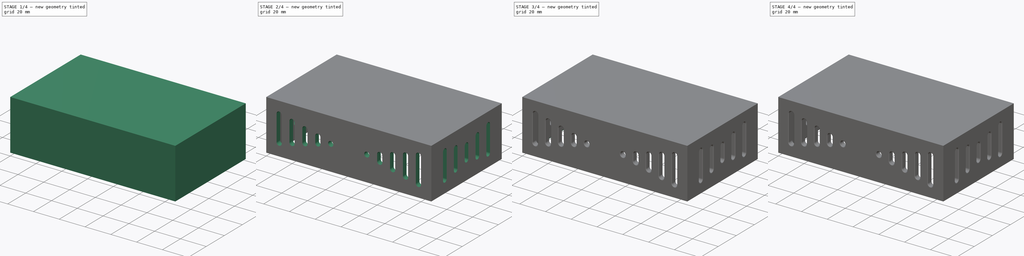
[diagram: build sequence overview — one tinted view per stage of 4, left to right]
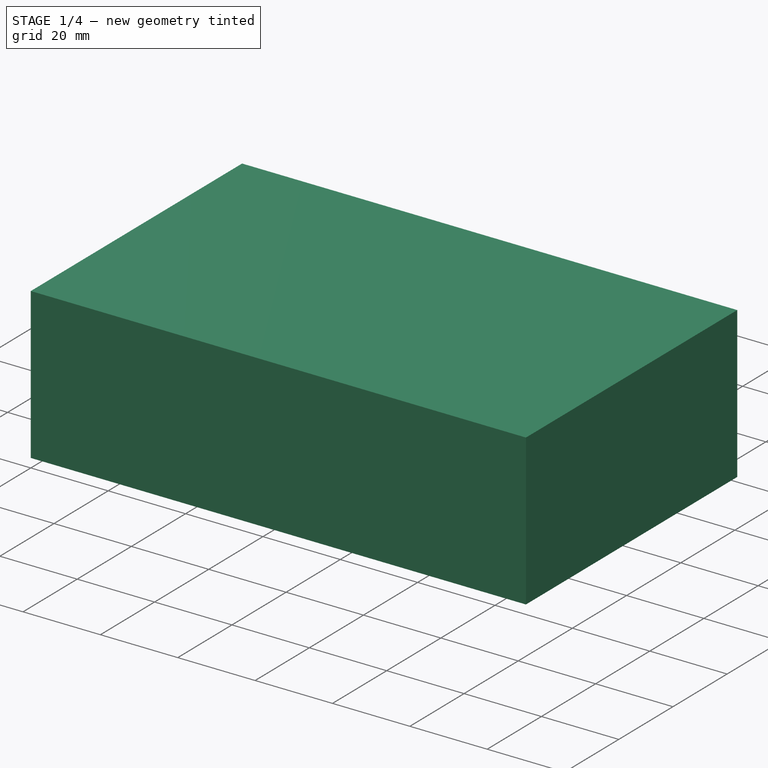
[diagram: stage 1 of 4 — iso view after this stage's code; geometry added in this stage tinted green]
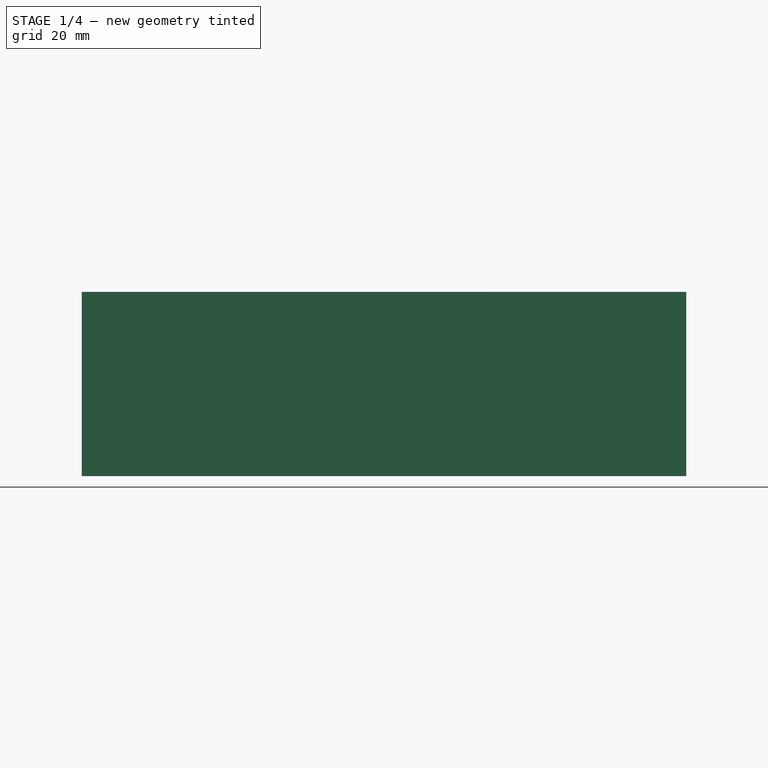
[diagram: stage 1 of 4 — front view after this stage's code; geometry added in this stage tinted green]
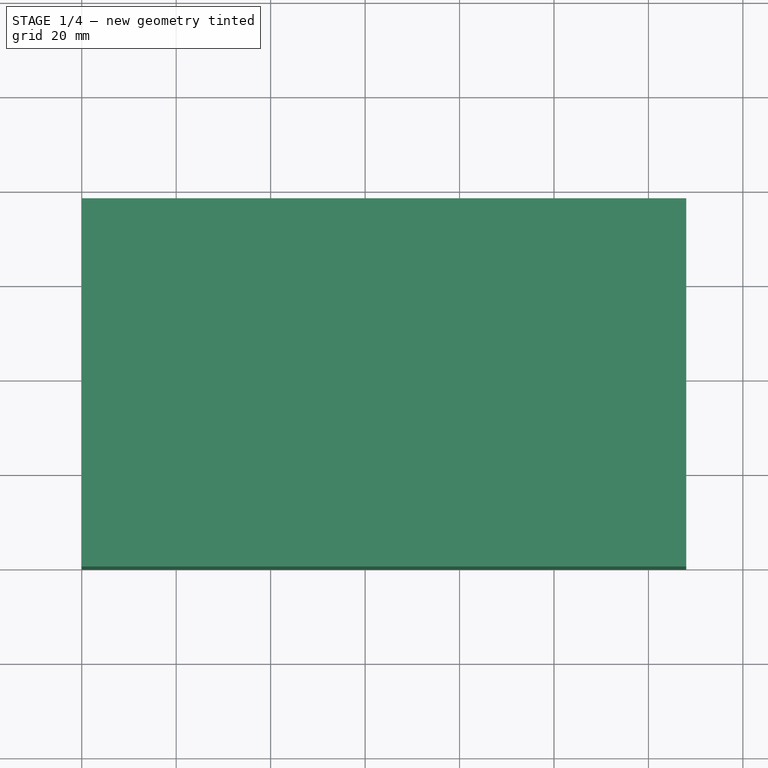
[diagram: stage 1 of 4 — top view after this stage's code; geometry added in this stage tinted green]
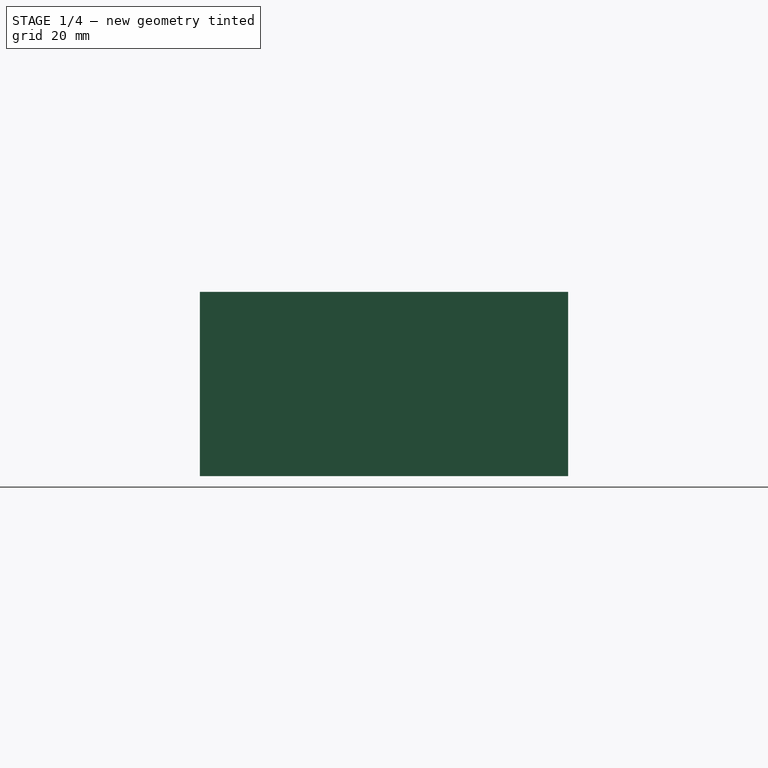
[diagram: stage 1 of 4 — right view after this stage's code; geometry added in this stage tinted green]
FCSTD DOCUMENT  (FreeCAD 0.19R24276 (Git))
Label: Airlogger Case Body
License: All rights reserved
LicenseURL: http://en.wikipedia.org/wiki/All_rights_reserved
objects: Sketcher::SketchObject×7, PartDesign::Pocket×6, PartDesign::Fillet×2, PartDesign::Pad×1, Spreadsheet::Sheet×1, PartDesign::Body×1
note: 26 computed .brp shape members not serialized (recipe doc carries the construction recipe); baked Part::Feature solids carry a one-line shape summary decoded from their .brp

FEATURE [Sketcher::SketchObject] Sketch
  FullyConstrained = true
  MapMode = 5
  Support = -> [XY_Plane]
  sketch-geometry (4):
    g0: LineSegment StartX=0 StartY=78 StartZ=0 EndX=128 EndY=78 EndZ=0
    g1: LineSegment StartX=128 StartY=78 StartZ=0 EndX=128 EndY=0 EndZ=0
    g2: LineSegment StartX=128 StartY=0 StartZ=0 EndX=0 EndY=0 EndZ=0
    g3: LineSegment StartX=0 StartY=0 StartZ=0 EndX=0 EndY=78 EndZ=0
  constraints (11):
    c: Coincident(g0,g1)
    c: Coincident(g1,g2)
    c: Coincident(g2,g3)
    c: Coincident(g3,g0)
    c: Horizontal(g0)
    c: Horizontal(g2)
    c: Vertical(g1)
    c: Vertical(g3)
    c: DistanceX(g0,g0) = 128
    c: DistanceY(g1,g1) = 78
    c: Coincident(g-1,g2)
FEATURE [PartDesign::Pad] Pad
  Direction = (1,1,1)
  Length = 39
  Length2 = 100
  Profile = -> Sketch
  Refine = true
  Type = 0
FEATURE [Sketcher::SketchObject] Sketch001
  FullyConstrained = true
  MapMode = 5
  Placement = pos=(0,0,0) rot=(1,0,0;3.14159rad)
  Support = -> [Pad]
  sketch-geometry (4):
    g0: LineSegment StartX=4 StartY=-4 StartZ=0 EndX=124 EndY=-4 EndZ=0
    g1: LineSegment StartX=124 StartY=-4 StartZ=0 EndX=124 EndY=-74 EndZ=0
    g2: LineSegment StartX=124 StartY=-74 StartZ=0 EndX=4 EndY=-74 EndZ=0
    g3: LineSegment StartX=4 StartY=-74 StartZ=0 EndX=4 EndY=-4 EndZ=0
  constraints (12):
    c: Coincident(g0,g1)
    c: Coincident(g1,g2)
    c: Coincident(g2,g3)
    c: Coincident(g3,g0)
    c: Horizontal(g0)
    c: Horizontal(g2)
    c: Vertical(g1)
    c: Vertical(g3)
    c: DistanceX(g-1,g0) = 4
    c: DistanceY(g0,g-1) = 4
    c: DistanceX(g0,g0) = 120
    c: DistanceY(g1,g1) = 70
FEATURE [PartDesign::Pocket] Pocket
  BaseFeature = -> Pad
  Length = 35
  Length2 = 100
  Profile = -> Sketch001
  Refine = true
  Type = 0
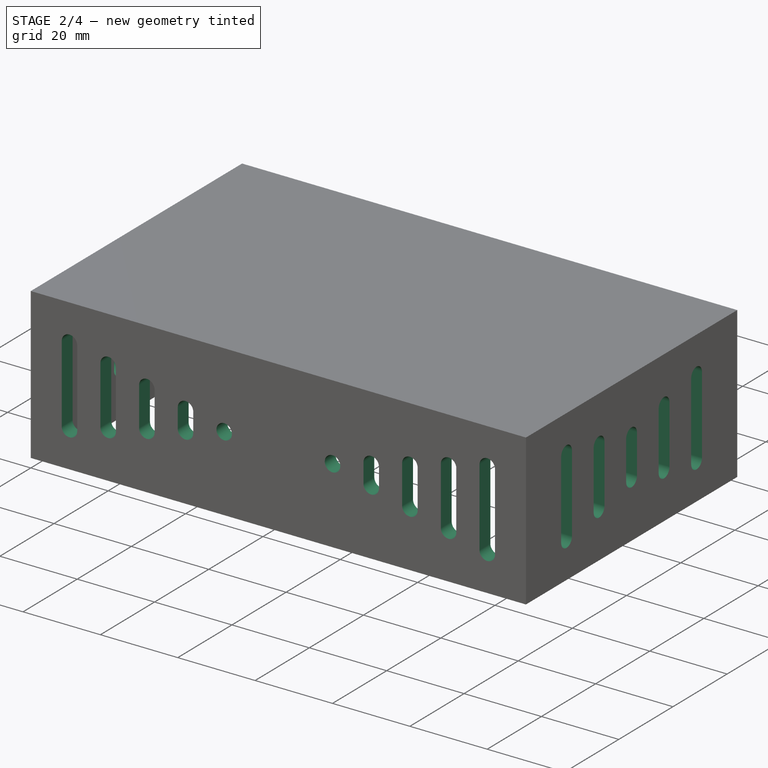
[diagram: stage 2 of 4 — iso view after this stage's code; geometry added in this stage tinted green]
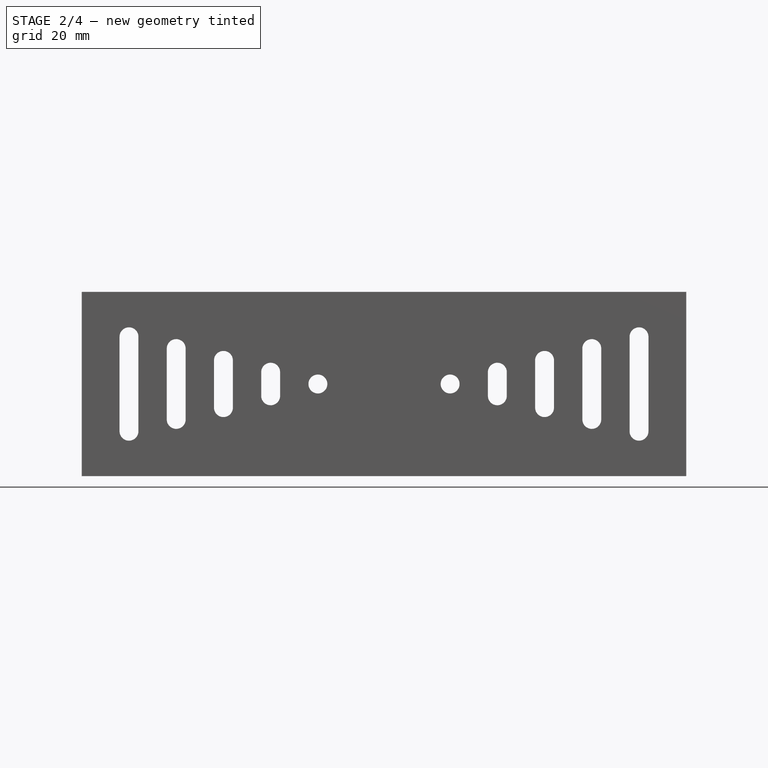
[diagram: stage 2 of 4 — front view after this stage's code; geometry added in this stage tinted green]
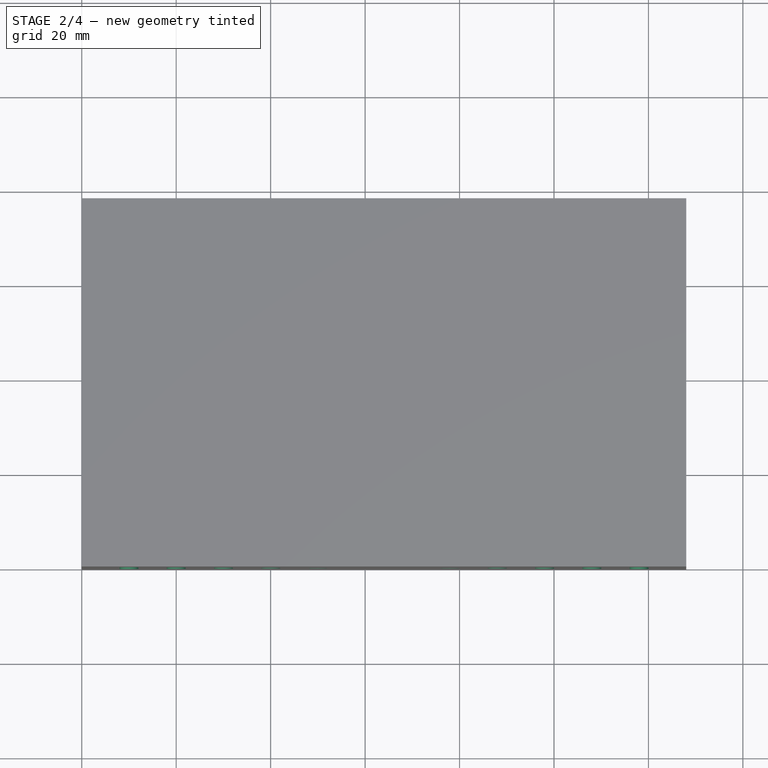
[diagram: stage 2 of 4 — top view after this stage's code; geometry added in this stage tinted green]
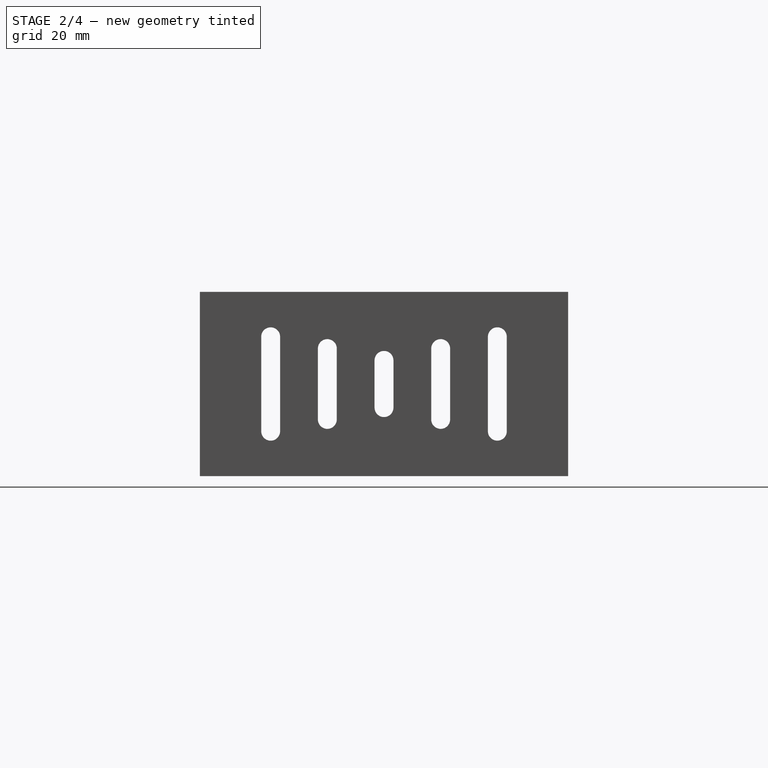
[diagram: stage 2 of 4 — right view after this stage's code; geometry added in this stage tinted green]
FEATURE [Sketcher::SketchObject] Sketch002
  ExternalGeometry = -> [Pocket]
  FullyConstrained = true
  MapMode = 5
  Placement = pos=(0,78,0) rot=(0,0.707107,0.707107;3.14159rad)
  Support = -> [Pocket]
  expr: Constraints[30] = Spreadsheet.hole_distance
  expr: Constraints[31] = Spreadsheet.hole_distance
  expr: Constraints[72] = Spreadsheet.hole_distance
  expr: Constraints[6] = Spreadsheet.hole_width
  expr: Constraints[64] = Spreadsheet.hole_distance + Spreadsheet.hole_width / 2
  expr: Constraints[70] = Spreadsheet.hole_distance + Spreadsheet.hole_width / 2
  expr: Constraints[73] = Spreadsheet.hole_distance
  expr: Constraints[71] = Spreadsheet.hole_distance
  expr: Constraints[29] = Spreadsheet.hole_width
  expr: Constraints[32] = Spreadsheet.hole_distance
  expr: Constraints[74] = Spreadsheet.hole_width
  sketch-geometry (35):
    g0: ArcOfCircle CenterX=-118 CenterY=29.5 CenterZ=0 NormalX=0 NormalY=0 NormalZ=1 AngleXU=0 Radius=2 StartAngle=5e-16 EndAngle=3.14159
    g1: ArcOfCircle CenterX=-118 CenterY=9.5 CenterZ=0 NormalX=0 NormalY=0 NormalZ=1 AngleXU=0 Radius=2 StartAngle=3.14159 EndAngle=6.28319
    g2: LineSegment StartX=-120 StartY=29.5 StartZ=0 EndX=-120 EndY=9.5 EndZ=0
    g3: LineSegment StartX=-116 StartY=29.5 StartZ=0 EndX=-116 EndY=9.5 EndZ=0
    g4: ArcOfCircle CenterX=-108 CenterY=27 CenterZ=0 NormalX=0 NormalY=0 NormalZ=1 AngleXU=0 Radius=2 StartAngle=5e-16 EndAngle=3.14159
    g5: ArcOfCircle CenterX=-108 CenterY=12 CenterZ=0 NormalX=0 NormalY=0 NormalZ=1 AngleXU=0 Radius=2 StartAngle=3.14159 EndAngle=6.28319
    g6: LineSegment StartX=-110 StartY=27 StartZ=0 EndX=-110 EndY=12 EndZ=0
    g7: LineSegment StartX=-106 StartY=27 StartZ=0 EndX=-106 EndY=12 EndZ=0
    g8: ArcOfCircle CenterX=-98 CenterY=24.5 CenterZ=0 NormalX=0 NormalY=0 NormalZ=1 AngleXU=0 Radius=2 StartAngle=7e-16 EndAngle=3.14159
    g9: ArcOfCircle CenterX=-98 CenterY=14.5 CenterZ=0 NormalX=0 NormalY=0 NormalZ=1 AngleXU=0 Radius=2 StartAngle=3.14159 EndAngle=6.28319
    g10: LineSegment StartX=-100 StartY=24.5 StartZ=0 EndX=-100 EndY=14.5 EndZ=0
    g11: LineSegment StartX=-96 StartY=24.5 StartZ=0 EndX=-96 EndY=14.5 EndZ=0
    g12: ArcOfCircle CenterX=-88 CenterY=22 CenterZ=0 NormalX=0 NormalY=0 NormalZ=1 AngleXU=0 Radius=2 StartAngle=0 EndAngle=3.14159
    g13: ArcOfCircle CenterX=-88 CenterY=17 CenterZ=0 NormalX=0 NormalY=0 NormalZ=1 AngleXU=0 Radius=2 StartAngle=3.14159 EndAngle=6.28319
    g14: LineSegment StartX=-90 StartY=22 StartZ=0 EndX=-90 EndY=17 EndZ=0
    g15: LineSegment StartX=-86 StartY=22 StartZ=0 EndX=-86 EndY=17 EndZ=0
    g16: Circle CenterX=-78 CenterY=19.5 CenterZ=0 NormalX=0 NormalY=0 NormalZ=1 AngleXU=0 Radius=2
    g17: LineSegment StartX=0 StartY=19.5 StartZ=0 EndX=-128 EndY=19.5 EndZ=0
    g18: ArcOfCircle CenterX=-10 CenterY=9.5 CenterZ=0 NormalX=0 NormalY=0 NormalZ=1 AngleXU=0 Radius=2 StartAngle=3.14159 EndAngle=6.28319
    g19: ArcOfCircle CenterX=-10 CenterY=29.5 CenterZ=0 NormalX=0 NormalY=0 NormalZ=1 AngleXU=0 Radius=2 StartAngle=5e-16 EndAngle=3.14159
    g20: LineSegment StartX=-8 StartY=9.5 StartZ=0 EndX=-8 EndY=29.5 EndZ=0
    g21: LineSegment StartX=-12 StartY=9.5 StartZ=0 EndX=-12 EndY=29.5 EndZ=0
    g22: ArcOfCircle CenterX=-20 CenterY=12 CenterZ=0 NormalX=0 NormalY=0 NormalZ=1 AngleXU=0 Radius=2 StartAngle=3.14159 EndAngle=6.28319
    g23: ArcOfCircle CenterX=-20 CenterY=27 CenterZ=0 NormalX=0 NormalY=0 NormalZ=1 AngleXU=0 Radius=2 StartAngle=0 EndAngle=3.14159
    g24: LineSegment StartX=-18 StartY=12 StartZ=0 EndX=-18 EndY=27 EndZ=0
    g25: LineSegment StartX=-22 StartY=12 StartZ=0 EndX=-22 EndY=27 EndZ=0
    g26: ArcOfCircle CenterX=-30 CenterY=14.5 CenterZ=0 NormalX=0 NormalY=0 NormalZ=1 AngleXU=0 Radius=2 StartAngle=3.14159 EndAngle=6.28319
    g27: ArcOfCircle CenterX=-30 CenterY=24.5 CenterZ=0 NormalX=0 NormalY=0 NormalZ=1 AngleXU=0 Radius=2 StartAngle=-9e-16 EndAngle=3.14159
    g28: LineSegment StartX=-28 StartY=14.5 StartZ=0 EndX=-28 EndY=24.5 EndZ=0
    g29: LineSegment StartX=-32 StartY=14.5 StartZ=0 EndX=-32 EndY=24.5 EndZ=0
    g30: ArcOfCircle CenterX=-40 CenterY=17 CenterZ=0 NormalX=0 NormalY=0 NormalZ=1 AngleXU=0 Radius=2 StartAngle=3.14159 EndAngle=6.28319
    g31: ArcOfCircle CenterX=-40 CenterY=22 CenterZ=0 NormalX=0 NormalY=0 NormalZ=1 AngleXU=0 Radius=2 StartAngle=-9e-16 EndAngle=3.14159
    g32: LineSegment StartX=-38 StartY=17 StartZ=0 EndX=-38 EndY=22 EndZ=0
    g33: LineSegment StartX=-42 StartY=17 StartZ=0 EndX=-42 EndY=22 EndZ=0
    g34: Circle CenterX=-50 CenterY=19.5 CenterZ=0 NormalX=0 NormalY=0 NormalZ=1 AngleXU=0 Radius=2
  constraints (81):
    c: Tangent(g0,g3) = 1.5708
    c: Tangent(g0,g2) = -1.5708
    c: Tangent(g2,g1) = -1.5708
    c: Tangent(g3,g1) = 1.5708
    c: Vertical(g2)
    c: Equal(g0,g1)
    c: DistanceX(g0,g0) = 4
    c: Tangent(g4,g7) = 1.5708
    c: Tangent(g4,g6) = -1.5708
    c: Tangent(g6,g5) = -1.5708
    c: Tangent(g7,g5) = 1.5708
    c: Equal(g4,g5)
    c: Equal(g0,g4) = 4
    c: Tangent(g8,g11) = 1.5708
    c: Tangent(g8,g10) = -1.5708
    c: Tangent(g10,g9) = -1.5708
    c: Tangent(g11,g9) = 1.5708
    c: Equal(g8,g9)
    c: Equal(g0,g8) = 4
    c: Tangent(g12,g15) = 1.5708
    c: Tangent(g12,g14) = -1.5708
    c: Tangent(g14,g13) = -1.5708
    c: Tangent(g15,g13) = 1.5708
    c: Equal(g12,g13)
    c: Equal(g0,g12) = 4
    c: DistanceY(g2,g2) = 20
    c: DistanceY(g6,g6) = 15
    c: DistanceY(g10,g10) = 10
    c: DistanceY(g14,g14) = 5
    c: Diameter(g16) = 4
    c: DistanceX(g0,g4) = 6
    c: DistanceX(g4,g8) = 6
    c: DistanceX(g8,g12) = 6
    c: Symmetric(g-1,g-3,g17)
    c: DistanceX(g17,g17) = 128
    c: Symmetric(g0,g1,g17)
    c: Symmetric(g4,g5,g17)
    c: Symmetric(g8,g9,g17)
    c: Symmetric(g12,g13,g17)
    c: PointOnObject(g16,g17)
    c: Tangent(g18,g21) = 1.5708
    c: Tangent(g18,g20) = -1.5708
    c: Tangent(g20,g19) = -1.5708
    c: Tangent(g21,g19) = 1.5708
    c: Equal(g18,g19)
    c: Tangent(g22,g25) = 1.5708
    c: Tangent(g22,g24) = -1.5708
    c: Tangent(g24,g23) = -1.5708
    c: Tangent(g25,g23) = 1.5708
    c: Equal(g22,g23)
    c: Equal(g18,g22) = 4
    c: Tangent(g26,g29) = 1.5708
    c: Tangent(g26,g28) = -1.5708
    c: Tangent(g28,g27) = -1.5708
    c: Tangent(g29,g27) = 1.5708
    c: Equal(g26,g27)
    c: Equal(g18,g26) = 4
    c: Tangent(g30,g33) = 1.5708
    c: Tangent(g30,g32) = -1.5708
    c: Tangent(g32,g31) = -1.5708
    c: Tangent(g33,g31) = 1.5708
    c: Equal(g30,g31)
    c: Equal(g18,g30) = 4
    c: Diameter(g34) = 4
    c: DistanceX(g12,g16) = 8
    c: DistanceY(g20,g20) = 20
    c: DistanceY(g22,g23) = 15
    c: DistanceY(g28,g28) = 10
    c: DistanceY(g32,g32) = 5
    c: PointOnObject(g34,g17)
    c: DistanceX(g34,g31) = 8
    c: DistanceX(g31,g27) = 6
    c: DistanceX(g27,g23) = 6
    c: DistanceX(g23,g19) = 6
    c: DistanceX(g19,g19) = 4
    c: Symmetric(g19,g18,g17)
    c: Symmetric(g23,g22,g17)
    c: Symmetric(g27,g26,g17)
    c: Symmetric(g31,g30,g17)
    c: DistanceX(g17,g0) = 8
    c: DistanceX(g19,g-1) = 8
FEATURE [Spreadsheet::Sheet] Spreadsheet
  cells = A1(hole_width)=4; A2(hole_distance)=6; A3(hole_distance_front)=8
FEATURE [PartDesign::Pocket] Pocket001
  BaseFeature = -> Pocket
  Length = 5
  Length2 = 100
  Profile = -> Sketch002
  Refine = true
  Type = 1
FEATURE [Sketcher::SketchObject] Sketch003
  ExternalGeometry = -> [Pocket001]
  FullyConstrained = true
  MapMode = 5
  Placement = pos=(128,0,0) rot=(0.57735,0.57735,0.57735;2.0944rad)
  Support = -> [Pocket001]
  expr: Constraints[6] = Spreadsheet.hole_width
  expr: Constraints[28] = Spreadsheet.hole_width
  expr: Constraints[40] = Spreadsheet.hole_distance_front
  expr: Constraints[27] = Spreadsheet.hole_width
  expr: Constraints[41] = Spreadsheet.hole_distance_front
  expr: Constraints[45] = Spreadsheet.hole_distance_front
  expr: Constraints[46] = Spreadsheet.hole_distance_front
  sketch-geometry (21):
    g0: ArcOfCircle CenterX=15 CenterY=29.5 CenterZ=0 NormalX=0 NormalY=0 NormalZ=1 AngleXU=0 Radius=2 StartAngle=0 EndAngle=3.14159
    g1: ArcOfCircle CenterX=15 CenterY=9.5 CenterZ=0 NormalX=0 NormalY=0 NormalZ=1 AngleXU=0 Radius=2 StartAngle=3.14159 EndAngle=6.28319
    g2: LineSegment StartX=13 StartY=29.5 StartZ=0 EndX=13 EndY=9.5 EndZ=0
    g3: LineSegment StartX=17 StartY=29.5 StartZ=0 EndX=17 EndY=9.5 EndZ=0
    g4: ArcOfCircle CenterX=27 CenterY=27 CenterZ=0 NormalX=0 NormalY=0 NormalZ=1 AngleXU=0 Radius=2 StartAngle=9e-16 EndAngle=3.14159
    g5: ArcOfCircle CenterX=27 CenterY=12 CenterZ=0 NormalX=0 NormalY=0 NormalZ=1 AngleXU=0 Radius=2 StartAngle=3.14159 EndAngle=6.28319
    g6: LineSegment StartX=25 StartY=27 StartZ=0 EndX=25 EndY=12 EndZ=0
    g7: LineSegment StartX=29 StartY=27 StartZ=0 EndX=29 EndY=12 EndZ=0
    g8: ArcOfCircle CenterX=63 CenterY=29.5 CenterZ=0 NormalX=0 NormalY=0 NormalZ=1 AngleXU=0 Radius=2 StartAngle=-9e-16 EndAngle=3.14159
    g9: ArcOfCircle CenterX=63 CenterY=9.5 CenterZ=0 NormalX=0 NormalY=0 NormalZ=1 AngleXU=0 Radius=2 StartAngle=3.14159 EndAngle=6.28319
    g10: LineSegment StartX=61 StartY=29.5 StartZ=0 EndX=61 EndY=9.5 EndZ=0
    g11: LineSegment StartX=65 StartY=29.5 StartZ=0 EndX=65 EndY=9.5 EndZ=0
    g12: ArcOfCircle CenterX=51 CenterY=27 CenterZ=0 NormalX=0 NormalY=0 NormalZ=1 AngleXU=0 Radius=2 StartAngle=2e-16 EndAngle=3.14159
    g13: ArcOfCircle CenterX=51 CenterY=12 CenterZ=0 NormalX=0 NormalY=0 NormalZ=1 AngleXU=0 Radius=2 StartAngle=3.14159 EndAngle=6.28319
    g14: LineSegment StartX=49 StartY=27 StartZ=0 EndX=49 EndY=12 EndZ=0
    g15: LineSegment StartX=53 StartY=27 StartZ=0 EndX=53 EndY=12 EndZ=0
    g16: ArcOfCircle CenterX=39 CenterY=24.5 CenterZ=0 NormalX=0 NormalY=0 NormalZ=1 AngleXU=0 Radius=2 StartAngle=-9e-16 EndAngle=3.14159
    g17: ArcOfCircle CenterX=39 CenterY=14.5 CenterZ=0 NormalX=0 NormalY=0 NormalZ=1 AngleXU=0 Radius=2 StartAngle=3.14159 EndAngle=6.28319
    g18: LineSegment StartX=37 StartY=24.5 StartZ=0 EndX=37 EndY=14.5 EndZ=0
    g19: LineSegment StartX=41 StartY=24.5 StartZ=0 EndX=41 EndY=14.5 EndZ=0
    g20: LineSegment StartX=0 StartY=19.5 StartZ=0 EndX=78 EndY=19.5 EndZ=0
  constraints (48):
    c: Tangent(g0,g3) = 1.5708
    c: Tangent(g0,g2) = -1.5708
    c: Tangent(g2,g1) = -1.5708
    c: Tangent(g3,g1) = 1.5708
    c: Vertical(g2)
    c: Equal(g0,g1)
    c: DistanceX(g0,g0) = 4
    c: Tangent(g4,g7) = 1.5708
    c: Tangent(g4,g6) = -1.5708
    c: Tangent(g6,g5) = -1.5708
    c: Tangent(g7,g5) = 1.5708
    c: Equal(g4,g5)
    c: Equal(g0,g4) = 4
    c: Tangent(g8,g11) = 1.5708
    c: Tangent(g8,g10) = -1.5708
    c: Tangent(g10,g9) = -1.5708
    c: Tangent(g11,g9) = 1.5708
    c: Equal(g8,g9)
    c: Tangent(g12,g15) = 1.5708
    c: Tangent(g12,g14) = -1.5708
    c: Tangent(g14,g13) = -1.5708
    c: Tangent(g15,g13) = 1.5708
    c: Equal(g12,g13)
    c: DistanceY(g2,g2) = 20
    c: DistanceY(g11,g11) = 20
    c: DistanceY(g15,g15) = 15
    c: DistanceY(g7,g7) = 15
    c: DistanceX(g8,g8) = 4
    c: DistanceX(g12,g12) = 4
    c: Tangent(g16,g19) = 1.5708
    c: Tangent(g16,g18) = -1.5708
    c: Tangent(g18,g17) = -1.5708
    c: Tangent(g19,g17) = 1.5708
    c: Equal(g16,g17)
    c: Equal(g12,g16) = 4
    c: DistanceY(g19,g19) = 10
    c: Symmetric(g-3,g-1,g20)
    c: Vertical(g20,g-3)
    c: Symmetric(g0,g1,g20)
    c: Symmetric(g4,g5,g20)
    c: DistanceX(g0,g4) = 8
    c: DistanceX(g4,g16) = 8
    c: Symmetric(g16,g17,g20)
    c: Symmetric(g12,g13,g20)
    c: Symmetric(g8,g9,g20)
    c: DistanceX(g12,g8) = 8
    c: DistanceX(g16,g12) = 8
    c: DistanceX(g8,g-3) = 13
FEATURE [PartDesign::Pocket] Pocket002
  BaseFeature = -> Pocket001
  Length = 5
  Length2 = 100
  Profile = -> Sketch003
  Refine = true
  Type = 1
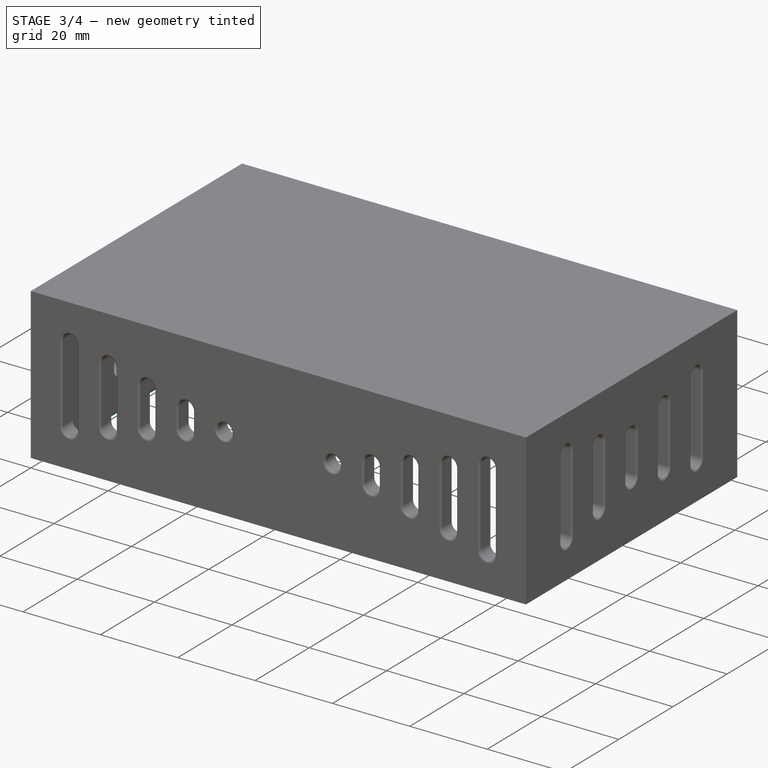
[diagram: stage 3 of 4 — iso view after this stage's code; geometry added in this stage tinted green]
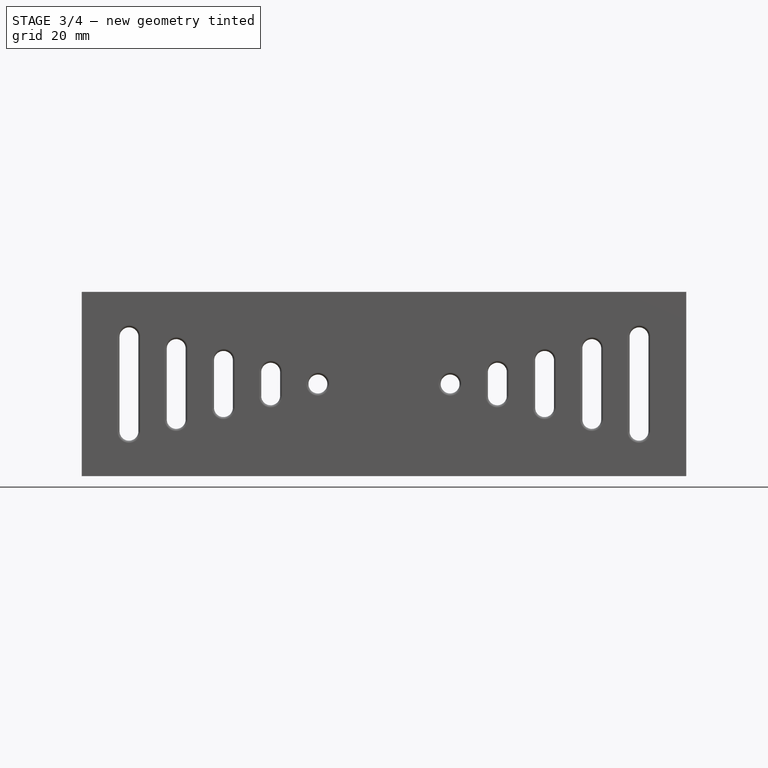
[diagram: stage 3 of 4 — front view after this stage's code; geometry added in this stage tinted green]
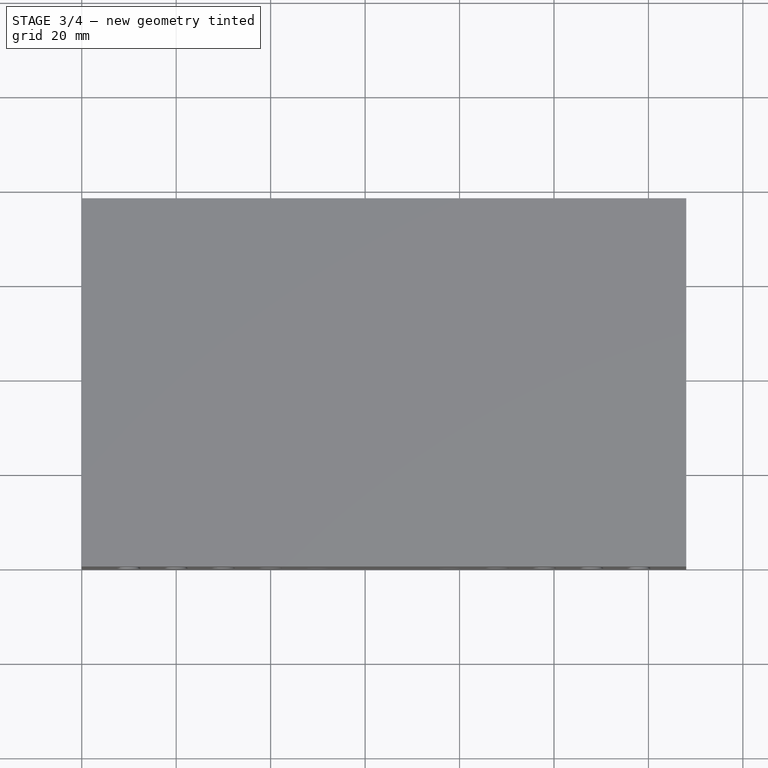
[diagram: stage 3 of 4 — top view after this stage's code; geometry added in this stage tinted green]
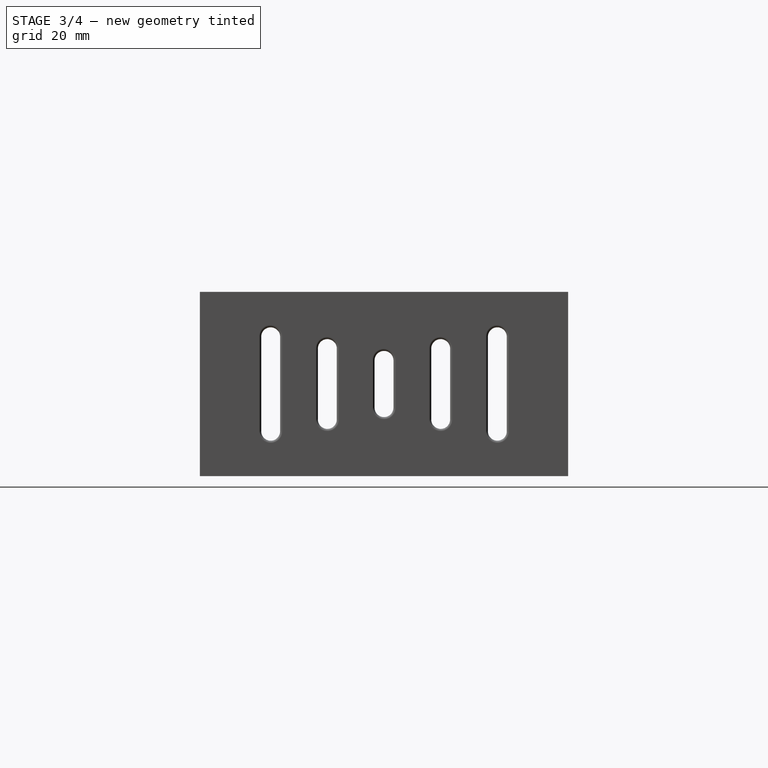
[diagram: stage 3 of 4 — right view after this stage's code; geometry added in this stage tinted green]
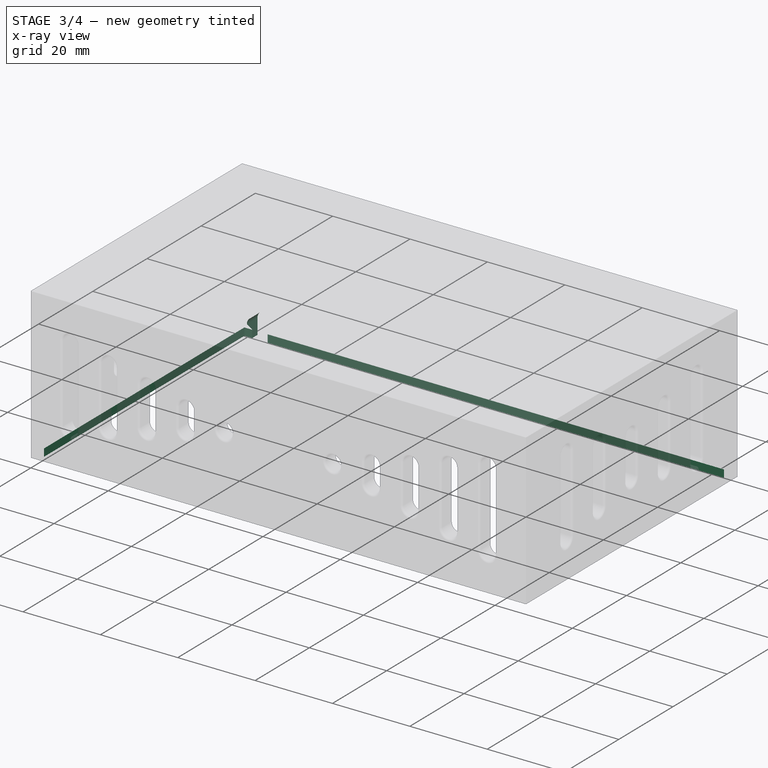
[diagram: stage 3 of 4 — x-ray composite at the iso view; earlier geometry ghosted, this stage's added geometry solid]
FEATURE [Sketcher::SketchObject] Sketch004
  FullyConstrained = true
  MapMode = 5
  Placement = pos=(0,0,0) rot=(1,0,0;3.14159rad)
  Support = -> [Pocket002]
  sketch-geometry (4):
    g0: LineSegment StartX=2 StartY=-2 StartZ=0 EndX=126 EndY=-2 EndZ=0
    g1: LineSegment StartX=126 StartY=-2 StartZ=0 EndX=126 EndY=-76 EndZ=0
    g2: LineSegment StartX=126 StartY=-76 StartZ=0 EndX=2 EndY=-76 EndZ=0
    g3: LineSegment StartX=2 StartY=-76 StartZ=0 EndX=2 EndY=-2 EndZ=0
  constraints (12):
    c: Coincident(g0,g1)
    c: Coincident(g1,g2)
    c: Coincident(g2,g3)
    c: Coincident(g3,g0)
    c: Horizontal(g0)
    c: Horizontal(g2)
    c: Vertical(g1)
    c: Vertical(g3)
    c: DistanceX(g0,g0) = 124
    c: DistanceY(g1,g1) = 74
    c: DistanceY(g0,g-1) = 2
    c: DistanceX(g-1,g0) = 2
FEATURE [PartDesign::Pocket] Pocket003
  BaseFeature = -> Pocket002
  Length = 2
  Length2 = 100
  Profile = -> Sketch004
  Refine = true
  Type = 0
FEATURE [PartDesign::Fillet] Fillet
  Base = -> Pocket003 [Edge38,Edge34,Edge30,Edge26,Edge22,Edge21,Edge18,Edge14,Edge10,Edge6,Edge74,Edge78,Edge82,Edge86,Edge90,Edge161,Edge165,Edge169,Edge173,Edge175,Edge176,Edge177,Edge181,Edge185,Edge189,Edge44,Edge48,Edge52,Edge56,Edge60]
  BaseFeature = -> Pocket003
  Radius = 0.5
  Refine = true
  SupportTransform = false
FEATURE [Sketcher::SketchObject] Sketch005
  FullyConstrained = true
  MapMode = 5
  Placement = pos=(0,78,0) rot=(0,0.707107,0.707107;3.14159rad)
  Support = -> [Fillet]
  sketch-geometry (4):
    g0: LineSegment StartX=-4 StartY=0 StartZ=0 EndX=-4 EndY=4 EndZ=0
    g1: LineSegment StartX=-8 StartY=0 StartZ=0 EndX=-8 EndY=4 EndZ=0
    g2: ArcOfCircle CenterX=-6 CenterY=4 CenterZ=0 NormalX=0 NormalY=0 NormalZ=1 AngleXU=0 Radius=2 StartAngle=1e-16 EndAngle=3.14159
    g3: LineSegment StartX=-8 StartY=0 StartZ=0 EndX=-4 EndY=0 EndZ=0
  constraints (13):
    c: PointOnObject(g0,g-1)
    c: Vertical(g0)
    c: PointOnObject(g1,g-1)
    c: Vertical(g1)
    c: Horizontal(g1,g0)
    c: DistanceX(g1,g0) = 4
    c: Coincident(g2,g1)
    c: Coincident(g2,g0)
    c: Horizontal(g2,g0)
    c: DistanceY(g0,g0) = 4
    c: DistanceX(g0,g-1) = 4
    c: Coincident(g3,g1)
    c: Coincident(g3,g0)
FEATURE [PartDesign::Pocket] Pocket004
  BaseFeature = -> Fillet
  Length = 5
  Length2 = 100
  Profile = -> Sketch005
  Refine = true
  Type = 0
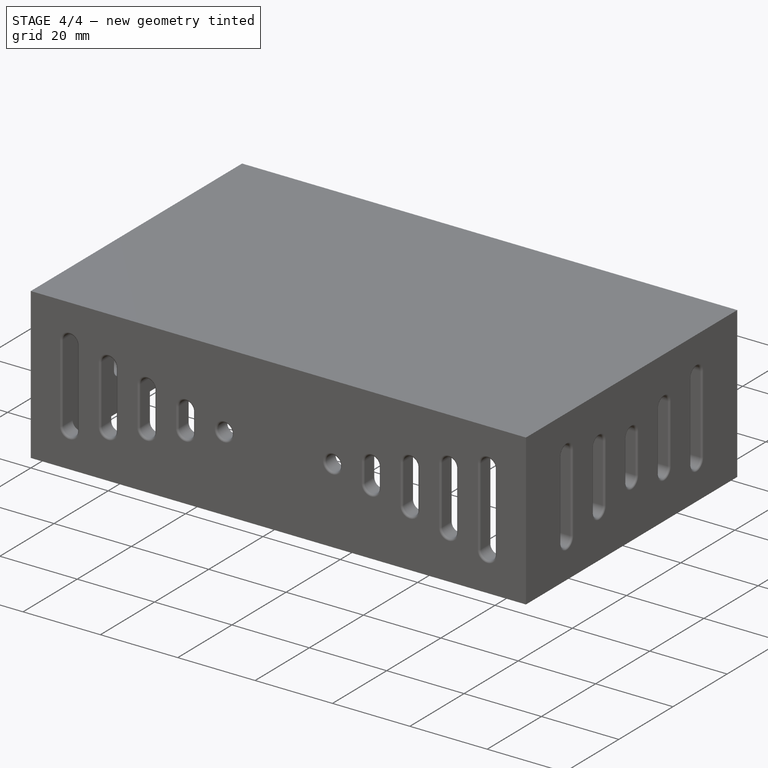
[diagram: stage 4 of 4 — iso view after this stage's code; geometry added in this stage tinted green]
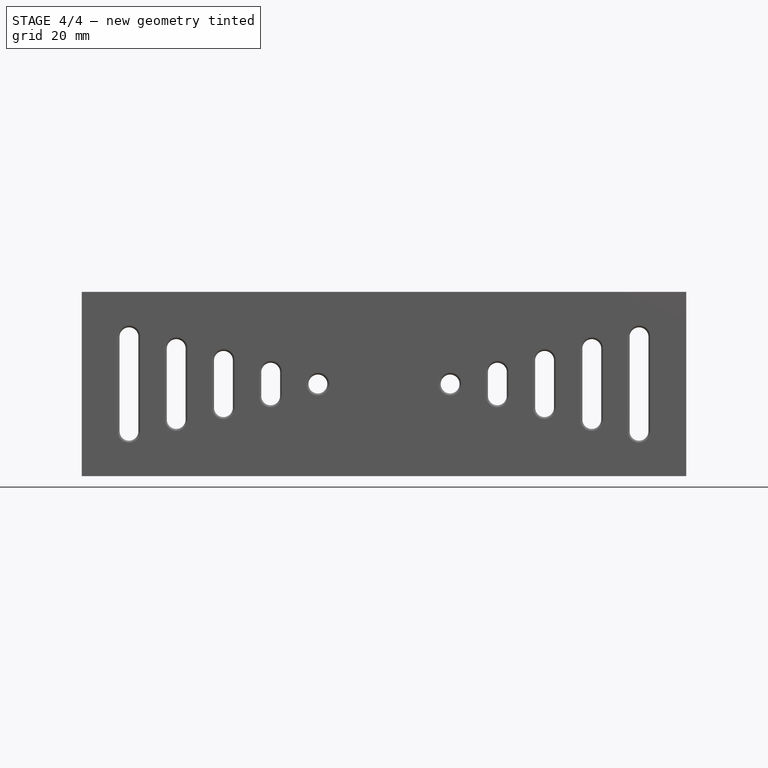
[diagram: stage 4 of 4 — front view after this stage's code; geometry added in this stage tinted green]
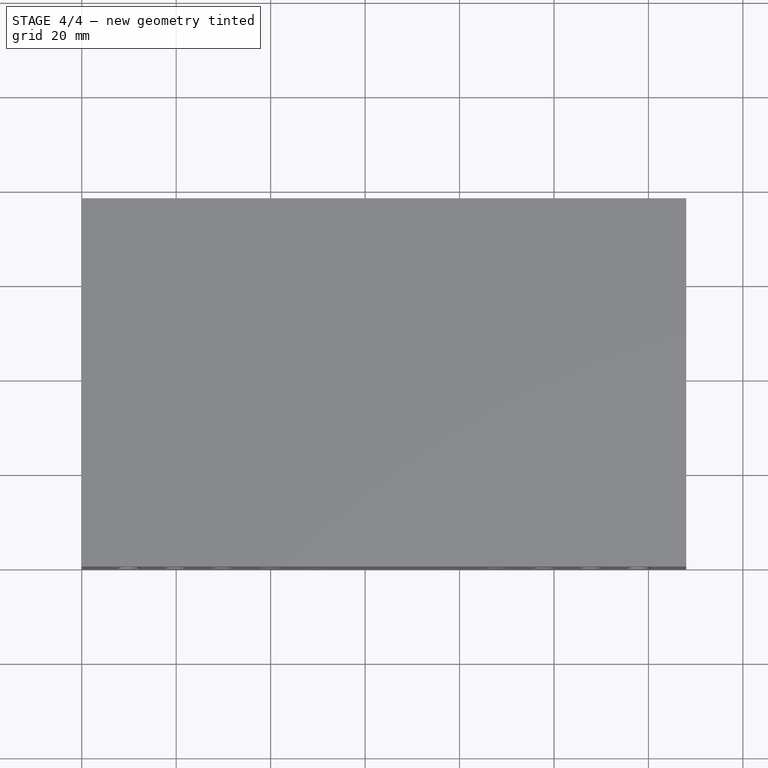
[diagram: stage 4 of 4 — top view after this stage's code; geometry added in this stage tinted green]
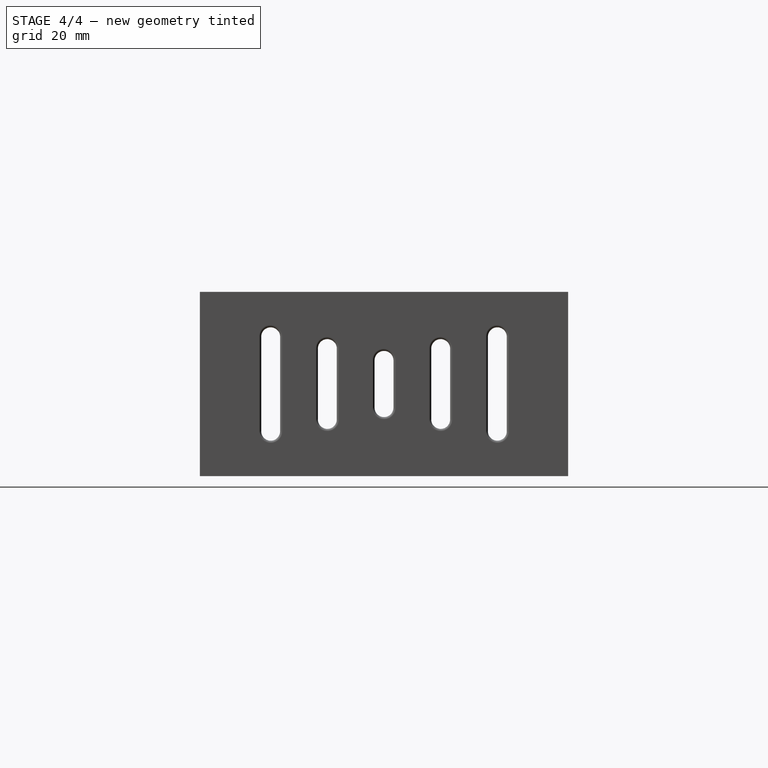
[diagram: stage 4 of 4 — right view after this stage's code; geometry added in this stage tinted green]
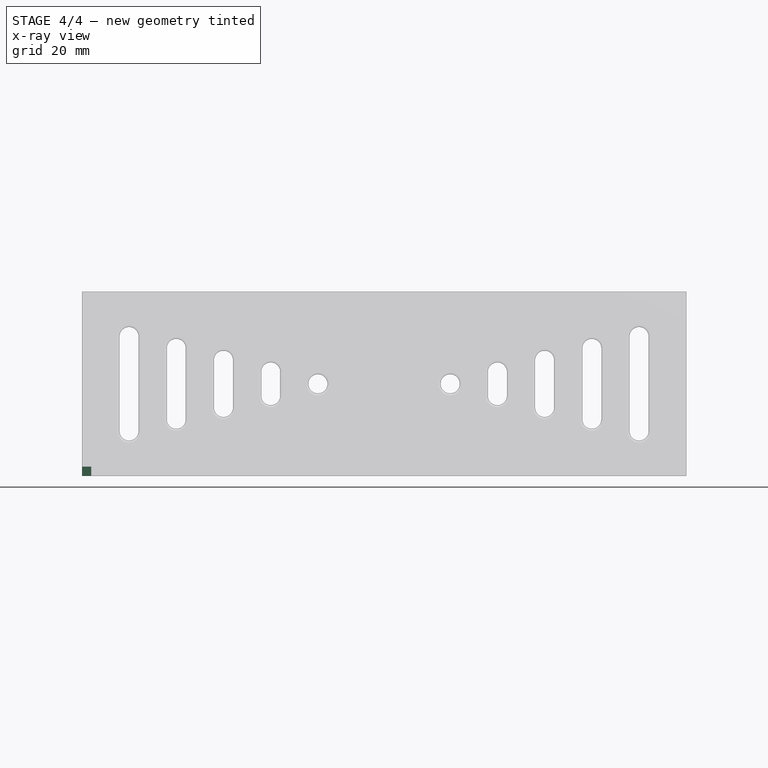
[diagram: stage 4 of 4 — x-ray composite at the front view; earlier geometry ghosted, this stage's added geometry solid]
FEATURE [PartDesign::Fillet] Fillet001
  Base = -> Pocket004 [Edge2]
  BaseFeature = -> Pocket004
  Radius = 0.5
  Refine = true
  SupportTransform = false
FEATURE [Sketcher::SketchObject] Sketch006
  ExternalGeometry = -> [Fillet001]
  FullyConstrained = true
  MapMode = 5
  Placement = pos=(0,0,0) rot=(0.57735,-0.57735,-0.57735;2.0944rad)
  Support = -> [Fillet001]
  sketch-geometry (6):
    g0: LineSegment StartX=-46.5 StartY=0 StartZ=0 EndX=-31.5 EndY=0 EndZ=0
    g1: LineSegment StartX=-31.5 StartY=0 StartZ=0 EndX=-31.5 EndY=2 EndZ=0
    g2: LineSegment StartX=-31.5 StartY=2 StartZ=0 EndX=-46.5 EndY=2 EndZ=0
    g3: LineSegment StartX=-46.5 StartY=2 StartZ=0 EndX=-46.5 EndY=0 EndZ=0
    g4: LineSegment StartX=-31.5 StartY=0 StartZ=0 EndX=0 EndY=0 EndZ=0
    g5: LineSegment StartX=-46.5 StartY=0 StartZ=0 EndX=-78 EndY=0 EndZ=0
  constraints (16):
    c: Coincident(g0,g1)
    c: Coincident(g1,g2)
    c: Coincident(g2,g3)
    c: Coincident(g3,g0)
    c: Horizontal(g0)
    c: Horizontal(g2)
    c: Vertical(g1)
    c: Vertical(g3)
    c: PointOnObject(g0,g-3)
    c: DistanceX(g2,g2) = 15
    c: DistanceY(g1,g1) = 2
    c: Coincident(g4,g0)
    c: Coincident(g4,g-1)
    c: Coincident(g5,g0)
    c: Coincident(g5,g-3)
    c: Equal(g5,g4)
FEATURE [PartDesign::Pocket] Pocket005
  BaseFeature = -> Fillet001
  Length = 5
  Length2 = 100
  Profile = -> Sketch006
  Refine = true
  Type = 0
FEATURE [PartDesign::Body] Body
  Group = -> [Sketch,Pad,Sketch001,Pocket,Sketch002,Pocket001,Sketch003,Pocket002,Sketch004,Pocket003,Fillet,Sketch005,Pocket004,Fillet001,Sketch006,Pocket005]
  Origin = -> Origin
  Tip = -> Pocket005
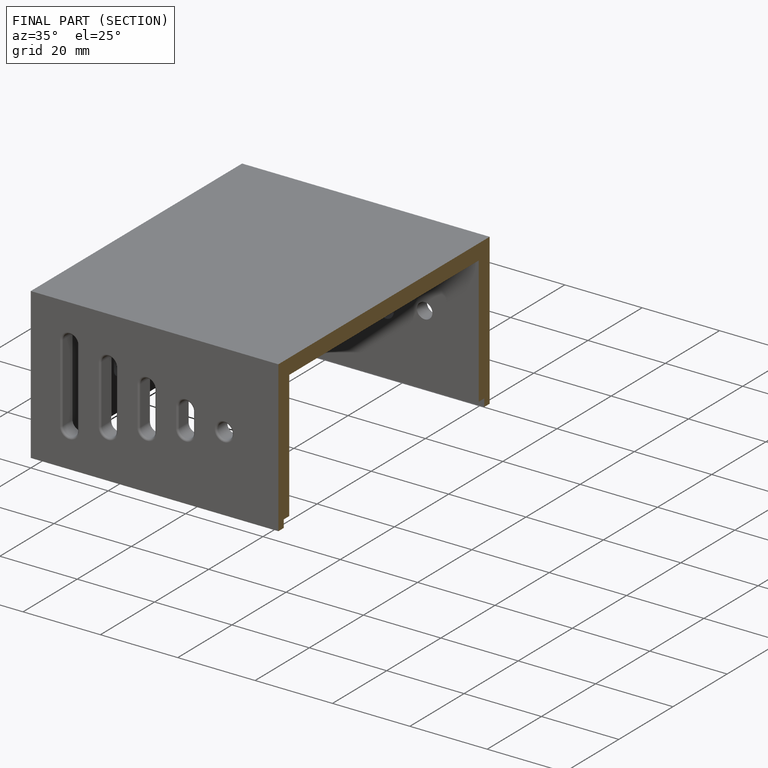
[diagram: finished part — half-section view (interior)]
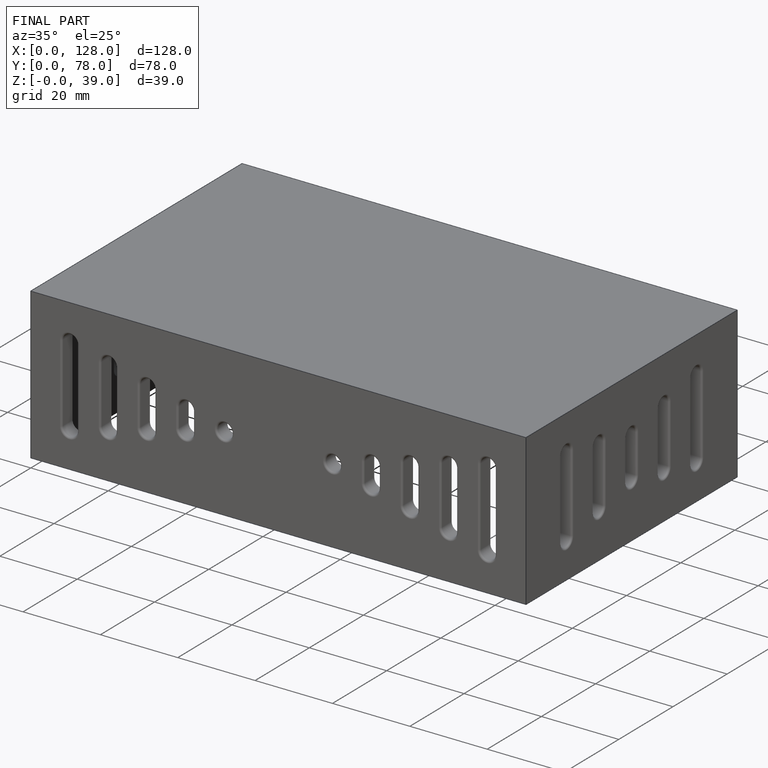
[diagram: finished part — iso view with bounding-box wireframe]
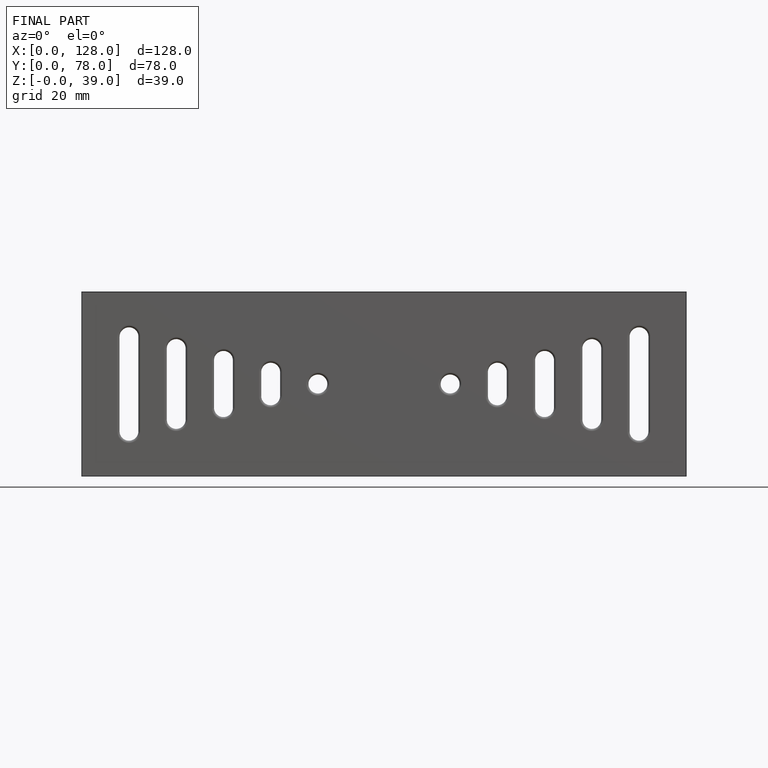
[diagram: finished part — front view with bounding-box wireframe]
